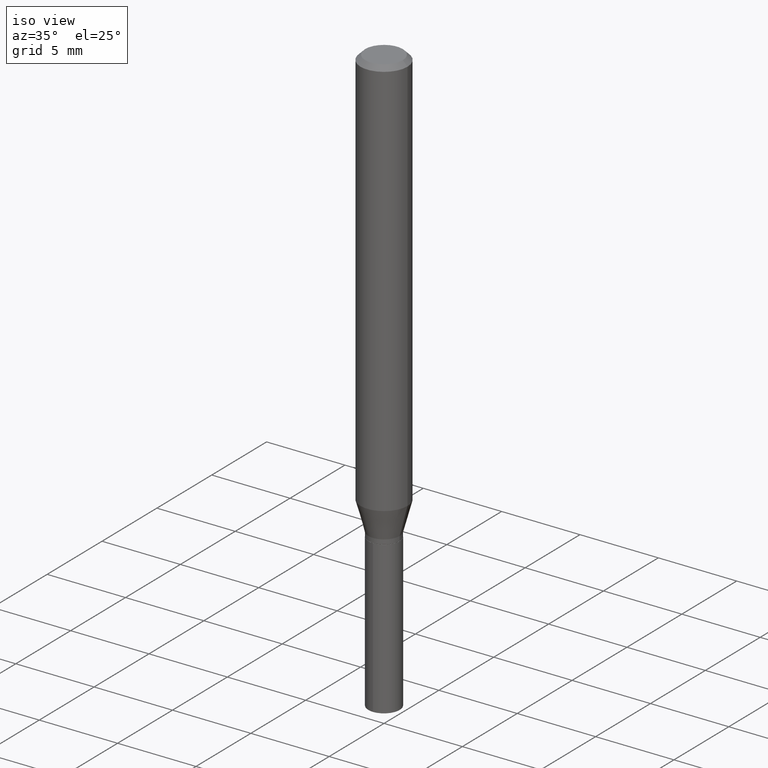
[diagram: clean part render]
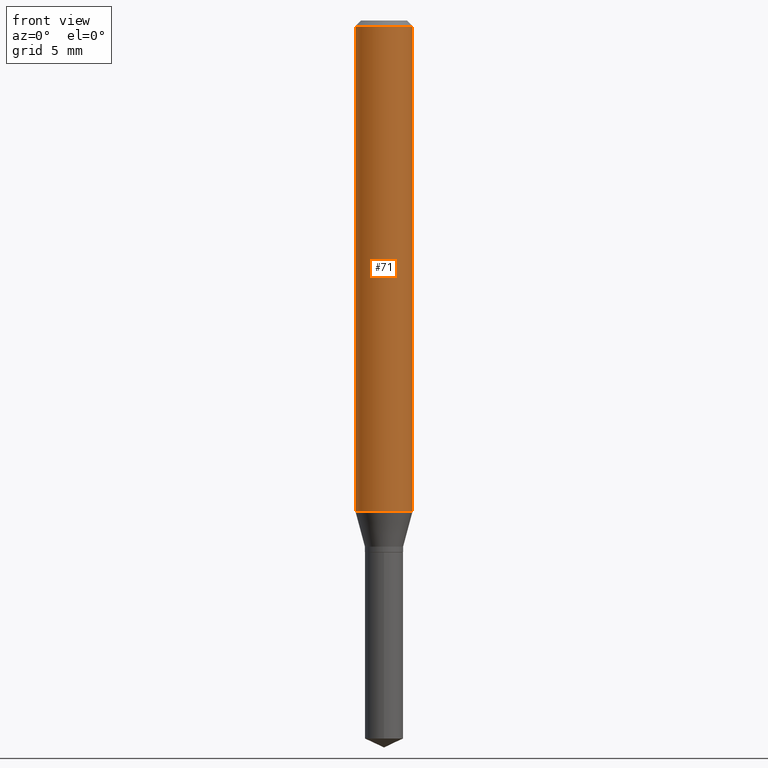
[diagram: tour spotlight — one face highlighted and labeled with its STEP entity id]
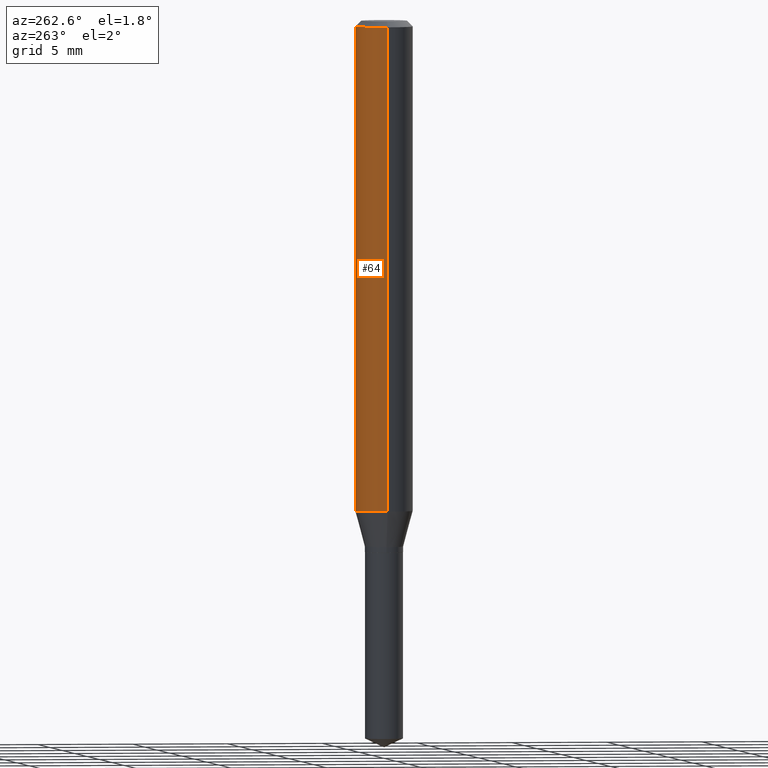
[diagram: tour spotlight — one face highlighted and labeled with its STEP entity id]
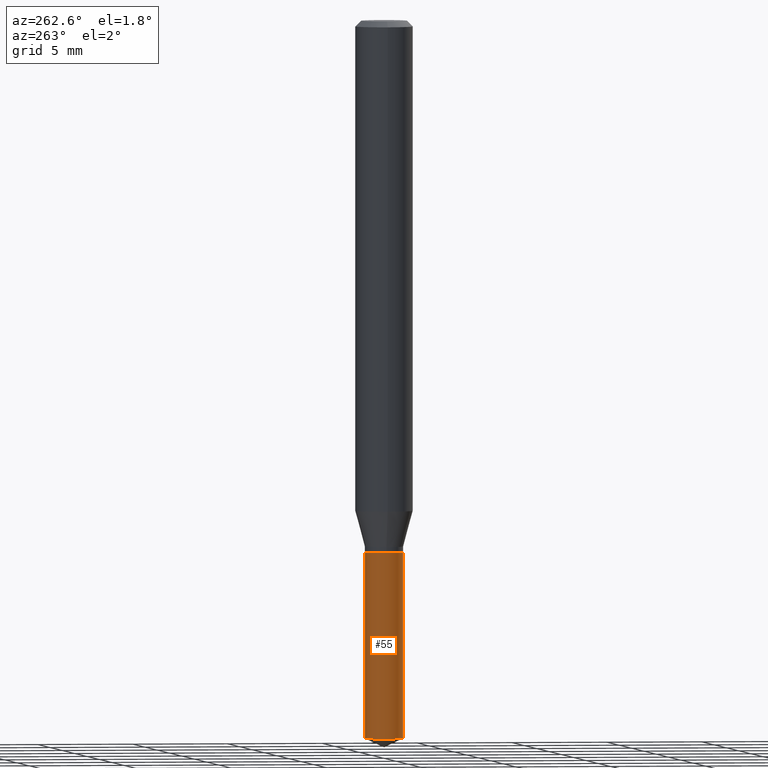
[diagram: tour spotlight — one face highlighted and labeled with its STEP entity id]
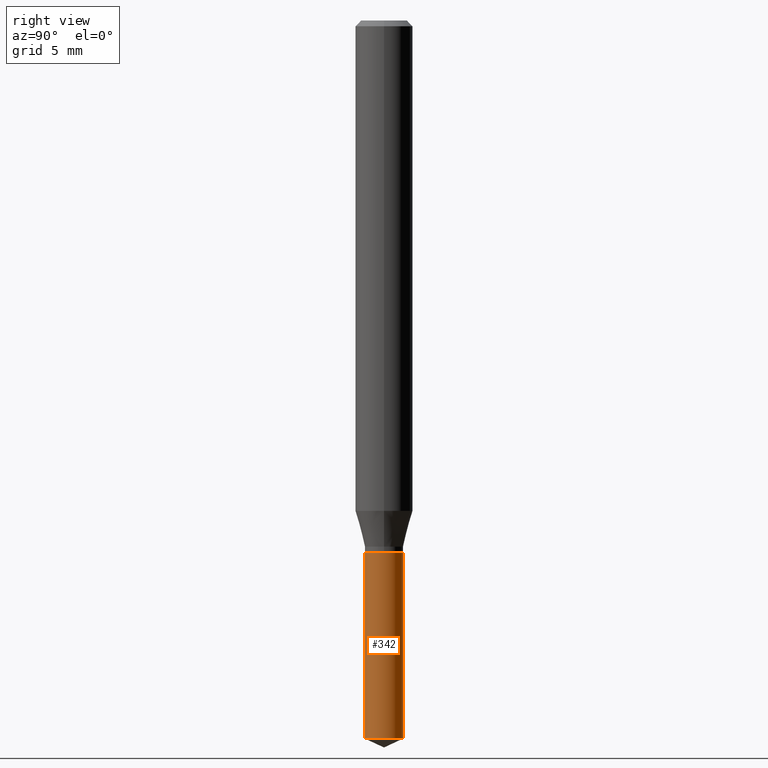
[diagram: tour spotlight — one face highlighted and labeled with its STEP entity id]
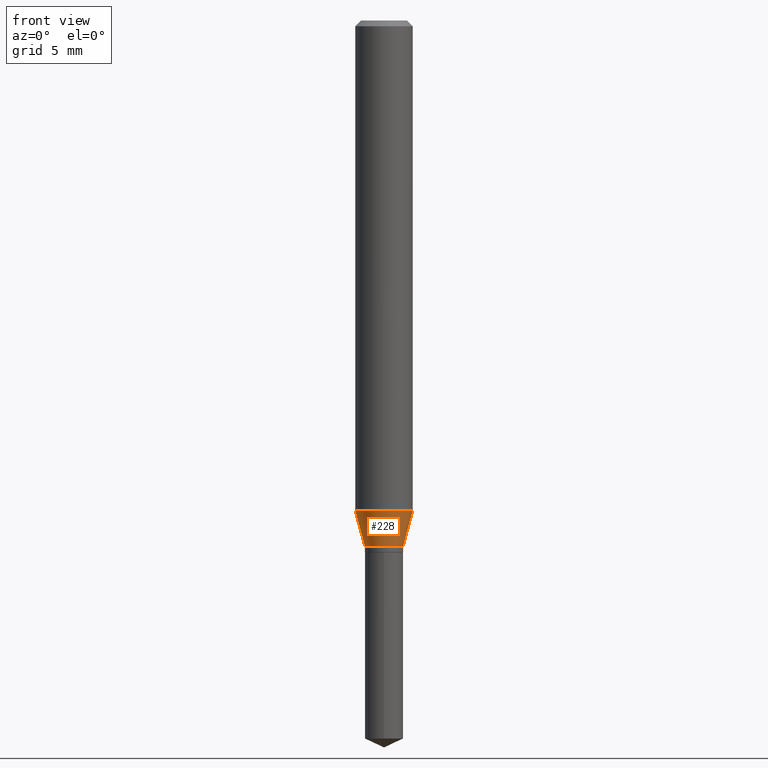
[diagram: tour spotlight — one face highlighted and labeled with its STEP entity id]
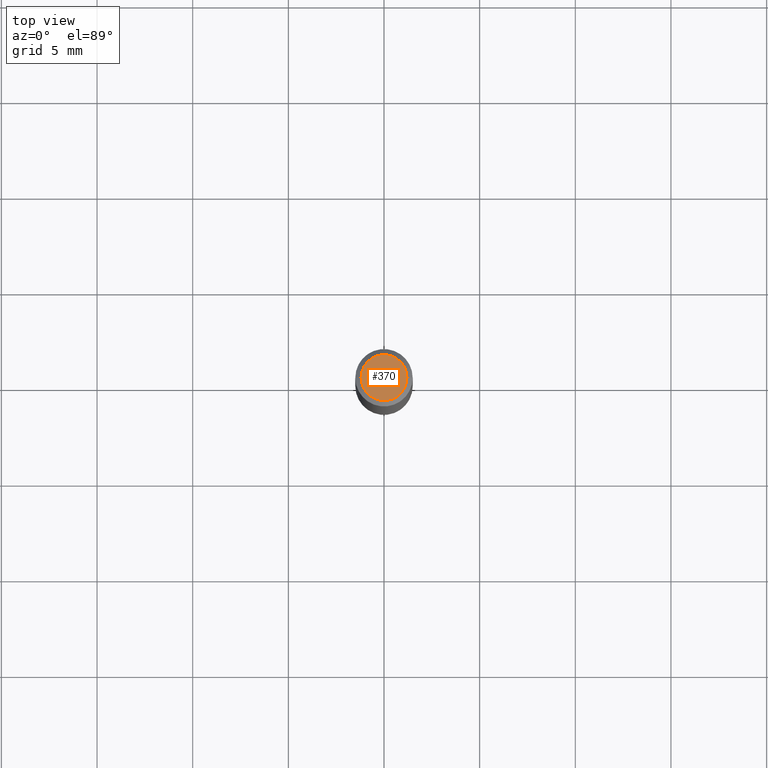
[diagram: tour spotlight — one face highlighted and labeled with its STEP entity id]
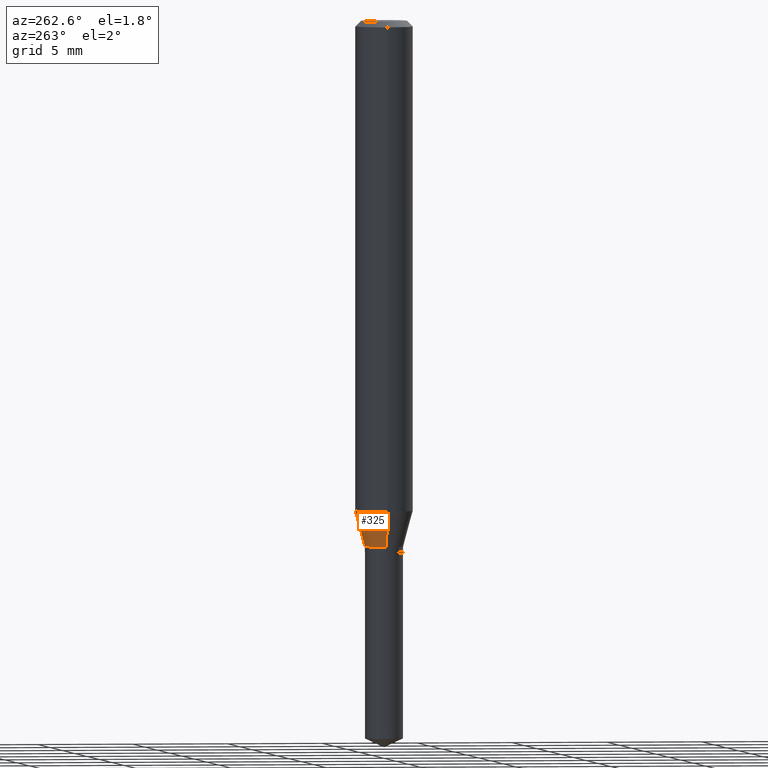
[diagram: tour spotlight — one face highlighted and labeled with its STEP entity id]
A machine part: a face-by-face anatomy tour. The part has 17 B-rep faces; the first image is the clean iso view, then the 7 largest visible faces are spotlighted one at a time (largest first), each with its STEP entity span.

Face 1 — front view, entity #71. In plain terms, the highlighted cylindrical surface (edge-blend (fillet) strip) has radius 1.4999 mm, axis along (-0, 0, 1).
Definition (entity closure, byte-faithful):
#1 = VERTEX_POINT ( 'NONE', #120 ) ;
#4 = VERTEX_POINT ( 'NONE', #45 ) ;
#22 = DIRECTION ( 'NONE',  ( -2.445468806185136597E-29, 3.491481338843145583E-15, 1.000000000000000000 ) ) ;
#23 = CARTESIAN_POINT ( 'NONE',  ( -0.05905000000000011628, -3.103952760819379740E-15, -1.009178599090892581 ) ) ;
#39 = AXIS2_PLACEMENT_3D ( 'NONE', #241, #271, #429 ) ;
#45 = CARTESIAN_POINT ( 'NONE',  ( 0.05905000000000011628, -3.935872192403094548E-15, -1.009178599090892581 ) ) ;
#47 = CIRCLE ( 'NONE', #186, 0.05905000000000011628 ) ;
#51 = EDGE_CURVE ( 'NONE', #333, #305, #424, .T. ) ;
#68 = CARTESIAN_POINT ( 'NONE',  ( 2.888098660104663766E-31, -4.123439461173779647E-17, -0.01181000000000007044 ) ) ;
#71 = ADVANCED_FACE ( 'NONE', ( #96 ), #238, .T. ) ;
#85 = DIRECTION ( 'NONE',  ( -2.445468806185136877E-29, 3.491481338843145188E-15, 1.000000000000000000 ) ) ;
#96 = FACE_OUTER_BOUND ( 'NONE', #398, .T. ) ;
#120 = CARTESIAN_POINT ( 'NONE',  ( 0.05904999999999999832, -4.535783407291118600E-16, -0.01181000000000007044 ) ) ;
#134 = ORIENTED_EDGE ( 'NONE', *, *, #310, .T. ) ;
#139 = DIRECTION ( 'NONE',  ( -2.445468806185136877E-29, 3.491481338843145188E-15, 1.000000000000000000 ) ) ;
#142 = LINE ( 'NONE', #448, #314 ) ;
#149 = CARTESIAN_POINT ( 'NONE',  ( -0.05905000000000006077, 4.195754854663395916E-16, -2.904631170795524694E-30 ) ) ;
#171 = DIRECTION ( 'NONE',  ( 1.000000000000000000, -6.982962677686266711E-15, 0.000000000000000000 ) ) ;
#178 = CARTESIAN_POINT ( 'NONE',  ( -0.05904999999999999832, -1.362805834982388396E-15, -0.01181000000000007044 ) ) ;
#186 = AXIS2_PLACEMENT_3D ( 'NONE', #482, #371, #439 ) ;
#230 = ORIENTED_EDGE ( 'NONE', *, *, #51, .F. ) ;
#238 = CYLINDRICAL_SURFACE ( 'NONE', #39, 0.05905000000000006077 ) ;
#241 = CARTESIAN_POINT ( 'NONE',  ( 0.000000000000000000, 0.000000000000000000, 0.000000000000000000 ) ) ;
#249 = ORIENTED_EDGE ( 'NONE', *, *, #394, .F. ) ;
#271 = DIRECTION ( 'NONE',  ( -2.445468806185136597E-29, 3.491481338843145583E-15, 1.000000000000000000 ) ) ;
#305 = VERTEX_POINT ( 'NONE', #178 ) ;
#310 = EDGE_CURVE ( 'NONE', #4, #1, #142, .T. ) ;
#314 = VECTOR ( 'NONE', #139, 39.37007874015748143 ) ;
#333 = VERTEX_POINT ( 'NONE', #23 ) ;
#335 = EDGE_CURVE ( 'NONE', #333, #4, #47, .T. ) ;
#369 = AXIS2_PLACEMENT_3D ( 'NONE', #68, #22, #171 ) ;
#371 = DIRECTION ( 'NONE',  ( -2.445468806185136597E-29, 3.491481338843145583E-15, 1.000000000000000000 ) ) ;
#394 = EDGE_CURVE ( 'NONE', #305, #1, #435, .T. ) ;
#398 = EDGE_LOOP ( 'NONE', ( #230, #406, #134, #249 ) ) ;
#406 = ORIENTED_EDGE ( 'NONE', *, *, #335, .T. ) ;
#424 = LINE ( 'NONE', #149, #441 ) ;
#429 = DIRECTION ( 'NONE',  ( 1.000000000000000000, -6.982962677686266711E-15, 4.876176775795935793E-29 ) ) ;
#435 = CIRCLE ( 'NONE', #369, 0.05904999999999999832 ) ;
#439 = DIRECTION ( 'NONE',  ( 1.000000000000000000, -6.982962677686266711E-15, 0.000000000000000000 ) ) ;
#441 = VECTOR ( 'NONE', #85, 39.37007874015748143 ) ;
#448 = CARTESIAN_POINT ( 'NONE',  ( 0.05905000000000006077, -4.123439461173744764E-16, 2.879382386107503023E-30 ) ) ;
#482 = CARTESIAN_POINT ( 'NONE',  ( 2.467914783946393779E-29, -3.523528246285719627E-15, -1.009178599090892581 ) ) ;

Face 2 — auxiliary view, entity #64. In plain terms, the highlighted cylindrical surface (edge-blend (fillet) strip) has radius 1.4999 mm, axis along (-0, 0, 1).
Definition (entity closure, byte-faithful):
#1 = VERTEX_POINT ( 'NONE', #120 ) ;
#4 = VERTEX_POINT ( 'NONE', #45 ) ;
#13 = EDGE_CURVE ( 'NONE', #4, #333, #265, .T. ) ;
#23 = CARTESIAN_POINT ( 'NONE',  ( -0.05905000000000011628, -3.103952760819379740E-15, -1.009178599090892581 ) ) ;
#45 = CARTESIAN_POINT ( 'NONE',  ( 0.05905000000000011628, -3.935872192403094548E-15, -1.009178599090892581 ) ) ;
#51 = EDGE_CURVE ( 'NONE', #333, #305, #424, .T. ) ;
#64 = ADVANCED_FACE ( 'NONE', ( #454 ), #456, .T. ) ;
#82 = ORIENTED_EDGE ( 'NONE', *, *, #51, .T. ) ;
#85 = DIRECTION ( 'NONE',  ( -2.445468806185136877E-29, 3.491481338843145188E-15, 1.000000000000000000 ) ) ;
#95 = DIRECTION ( 'NONE',  ( -2.445468806185136597E-29, 3.491481338843145583E-15, 1.000000000000000000 ) ) ;
#105 = CARTESIAN_POINT ( 'NONE',  ( 2.888098660104663766E-31, -4.123439461173779647E-17, -0.01181000000000007044 ) ) ;
#117 = CARTESIAN_POINT ( 'NONE',  ( 0.000000000000000000, 0.000000000000000000, 0.000000000000000000 ) ) ;
#120 = CARTESIAN_POINT ( 'NONE',  ( 0.05904999999999999832, -4.535783407291118600E-16, -0.01181000000000007044 ) ) ;
#123 = DIRECTION ( 'NONE',  ( -2.445468806185136597E-29, 3.491481338843145583E-15, 1.000000000000000000 ) ) ;
#139 = DIRECTION ( 'NONE',  ( -2.445468806185136877E-29, 3.491481338843145188E-15, 1.000000000000000000 ) ) ;
#142 = LINE ( 'NONE', #448, #314 ) ;
#149 = CARTESIAN_POINT ( 'NONE',  ( -0.05905000000000006077, 4.195754854663395916E-16, -2.904631170795524694E-30 ) ) ;
#152 = DIRECTION ( 'NONE',  ( 1.000000000000000000, -6.982962677686266711E-15, 0.000000000000000000 ) ) ;
#175 = DIRECTION ( 'NONE',  ( -2.445468806185136597E-29, 3.491481338843145583E-15, 1.000000000000000000 ) ) ;
#178 = CARTESIAN_POINT ( 'NONE',  ( -0.05904999999999999832, -1.362805834982388396E-15, -0.01181000000000007044 ) ) ;
#182 = ORIENTED_EDGE ( 'NONE', *, *, #310, .F. ) ;
#195 = AXIS2_PLACEMENT_3D ( 'NONE', #263, #123, #152 ) ;
#247 = AXIS2_PLACEMENT_3D ( 'NONE', #105, #175, #366 ) ;
#258 = AXIS2_PLACEMENT_3D ( 'NONE', #117, #95, #355 ) ;
#263 = CARTESIAN_POINT ( 'NONE',  ( 2.467914783946393779E-29, -3.523528246285719627E-15, -1.009178599090892581 ) ) ;
#265 = CIRCLE ( 'NONE', #195, 0.05905000000000011628 ) ;
#288 = CIRCLE ( 'NONE', #247, 0.05904999999999999832 ) ;
#305 = VERTEX_POINT ( 'NONE', #178 ) ;
#310 = EDGE_CURVE ( 'NONE', #4, #1, #142, .T. ) ;
#314 = VECTOR ( 'NONE', #139, 39.37007874015748143 ) ;
#330 = ORIENTED_EDGE ( 'NONE', *, *, #416, .F. ) ;
#333 = VERTEX_POINT ( 'NONE', #23 ) ;
#355 = DIRECTION ( 'NONE',  ( 1.000000000000000000, -6.982962677686266711E-15, 4.876176775795935793E-29 ) ) ;
#366 = DIRECTION ( 'NONE',  ( 1.000000000000000000, -6.982962677686266711E-15, 0.000000000000000000 ) ) ;
#416 = EDGE_CURVE ( 'NONE', #1, #305, #288, .T. ) ;
#424 = LINE ( 'NONE', #149, #441 ) ;
#438 = EDGE_LOOP ( 'NONE', ( #444, #82, #330, #182 ) ) ;
#441 = VECTOR ( 'NONE', #85, 39.37007874015748143 ) ;
#444 = ORIENTED_EDGE ( 'NONE', *, *, #13, .T. ) ;
#448 = CARTESIAN_POINT ( 'NONE',  ( 0.05905000000000006077, -4.123439461173744764E-16, 2.879382386107503023E-30 ) ) ;
#454 = FACE_OUTER_BOUND ( 'NONE', #438, .T. ) ;
#456 = CYLINDRICAL_SURFACE ( 'NONE', #258, 0.05905000000000006077 ) ;

Face 3 — auxiliary view, entity #55. In plain terms, the highlighted cylindrical surface (edge-blend (fillet) strip) has radius 0.9995 mm, axis along (-0, 0, 1).
Definition (entity closure, byte-faithful):
#33 = CARTESIAN_POINT ( 'NONE',  ( -2.747795813669278491E-16, -0.03935000000000382636, -1.094499999999999806 ) ) ;
#42 = VERTEX_POINT ( 'NONE', #270 ) ;
#49 = DIRECTION ( 'NONE',  ( -6.982962677686266711E-15, -1.000000000000000000, 3.471217272762723151E-15 ) ) ;
#55 = ADVANCED_FACE ( 'NONE', ( #232 ), #339, .T. ) ;
#63 = CARTESIAN_POINT ( 'NONE',  ( 2.795985665216355844E-16, 0.03934999999999617970, -1.094500000000000028 ) ) ;
#106 = VERTEX_POINT ( 'NONE', #391 ) ;
#119 = VECTOR ( 'NONE', #443, 39.37007874015748143 ) ;
#127 = CARTESIAN_POINT ( 'NONE',  ( 2.795985665216355844E-16, 0.03934999999999485437, -1.477750793651601446 ) ) ;
#133 = DIRECTION ( 'NONE',  ( -2.445358326776455510E-29, 3.491639551644474585E-15, 1.000000000000000000 ) ) ;
#181 = DIRECTION ( 'NONE',  ( -6.982962677686266711E-15, -1.000000000000000000, 3.471217272762723151E-15 ) ) ;
#189 = ORIENTED_EDGE ( 'NONE', *, *, #256, .F. ) ;
#191 = ORIENTED_EDGE ( 'NONE', *, *, #289, .F. ) ;
#224 = VERTEX_POINT ( 'NONE', #127 ) ;
#226 = CARTESIAN_POINT ( 'NONE',  ( 3.613751127869260610E-29, -5.159599954676888561E-15, -1.477750793651601224 ) ) ;
#232 = FACE_OUTER_BOUND ( 'NONE', #295, .T. ) ;
#256 = EDGE_CURVE ( 'NONE', #224, #411, #329, .T. ) ;
#270 = CARTESIAN_POINT ( 'NONE',  ( -2.747795813669185307E-16, -0.03935000000000517251, -1.477750793651601002 ) ) ;
#280 = AXIS2_PLACEMENT_3D ( 'NONE', #490, #301, #49 ) ;
#283 = CARTESIAN_POINT ( 'NONE',  ( 2.676565608369631794E-29, -3.821426325363822773E-15, -1.094499999999999806 ) ) ;
#289 = EDGE_CURVE ( 'NONE', #411, #106, #361, .T. ) ;
#294 = CARTESIAN_POINT ( 'NONE',  ( 2.795985665216261180E-16, 0.03934999999999617970, -1.094500000000000028 ) ) ;
#295 = EDGE_LOOP ( 'NONE', ( #189, #459, #474, #191 ) ) ;
#301 = DIRECTION ( 'NONE',  ( -2.445358326776455510E-29, 3.491639551644474585E-15, 1.000000000000000000 ) ) ;
#322 = DIRECTION ( 'NONE',  ( -2.445358326776455790E-29, 3.491639551644474585E-15, 1.000000000000000000 ) ) ;
#326 = LINE ( 'NONE', #33, #119 ) ;
#329 = LINE ( 'NONE', #294, #377 ) ;
#338 = DIRECTION ( 'NONE',  ( -2.445358326776455510E-29, 3.491639551644474585E-15, 1.000000000000000000 ) ) ;
#339 = CYLINDRICAL_SURFACE ( 'NONE', #280, 0.03935000000000000303 ) ;
#345 = DIRECTION ( 'NONE',  ( -6.982962677686266711E-15, -1.000000000000000000, 6.942434545525446301E-15 ) ) ;
#347 = AXIS2_PLACEMENT_3D ( 'NONE', #283, #133, #181 ) ;
#353 = CIRCLE ( 'NONE', #408, 0.03935000000000000303 ) ;
#361 = CIRCLE ( 'NONE', #347, 0.03935000000000000303 ) ;
#377 = VECTOR ( 'NONE', #322, 39.37007874015748143 ) ;
#391 = CARTESIAN_POINT ( 'NONE',  ( -2.747795813669278491E-16, -0.03935000000000382636, -1.094499999999999806 ) ) ;
#408 = AXIS2_PLACEMENT_3D ( 'NONE', #226, #338, #345 ) ;
#411 = VERTEX_POINT ( 'NONE', #63 ) ;
#422 = EDGE_CURVE ( 'NONE', #42, #106, #326, .T. ) ;
#443 = DIRECTION ( 'NONE',  ( -2.445358326776455790E-29, 3.491639551644474585E-15, 1.000000000000000000 ) ) ;
#446 = EDGE_CURVE ( 'NONE', #224, #42, #353, .T. ) ;
#459 = ORIENTED_EDGE ( 'NONE', *, *, #446, .T. ) ;
#474 = ORIENTED_EDGE ( 'NONE', *, *, #422, .T. ) ;
#490 = CARTESIAN_POINT ( 'NONE',  ( 2.676565608369631794E-29, -3.821426325363822773E-15, -1.094499999999999806 ) ) ;

Face 4 — right view, entity #342. In plain terms, the highlighted cylindrical surface (edge-blend (fillet) strip) has radius 0.9995 mm, axis along (-0, 0, 1).
Definition (entity closure, byte-faithful):
#33 = CARTESIAN_POINT ( 'NONE',  ( -2.747795813669278491E-16, -0.03935000000000382636, -1.094499999999999806 ) ) ;
#42 = VERTEX_POINT ( 'NONE', #270 ) ;
#46 = AXIS2_PLACEMENT_3D ( 'NONE', #237, #132, #436 ) ;
#50 = DIRECTION ( 'NONE',  ( -6.982962677686266711E-15, -1.000000000000000000, 3.471217272762723151E-15 ) ) ;
#63 = CARTESIAN_POINT ( 'NONE',  ( 2.795985665216355844E-16, 0.03934999999999617970, -1.094500000000000028 ) ) ;
#69 = ORIENTED_EDGE ( 'NONE', *, *, #88, .T. ) ;
#88 = EDGE_CURVE ( 'NONE', #42, #224, #257, .T. ) ;
#101 = DIRECTION ( 'NONE',  ( -2.445358326776455510E-29, 3.491639551644474585E-15, 1.000000000000000000 ) ) ;
#103 = FACE_OUTER_BOUND ( 'NONE', #252, .T. ) ;
#104 = ORIENTED_EDGE ( 'NONE', *, *, #107, .F. ) ;
#106 = VERTEX_POINT ( 'NONE', #391 ) ;
#107 = EDGE_CURVE ( 'NONE', #106, #411, #368, .T. ) ;
#119 = VECTOR ( 'NONE', #443, 39.37007874015748143 ) ;
#127 = CARTESIAN_POINT ( 'NONE',  ( 2.795985665216355844E-16, 0.03934999999999485437, -1.477750793651601446 ) ) ;
#132 = DIRECTION ( 'NONE',  ( -2.445358326776455510E-29, 3.491639551644474585E-15, 1.000000000000000000 ) ) ;
#198 = CARTESIAN_POINT ( 'NONE',  ( 2.676565608369631794E-29, -3.821426325363822773E-15, -1.094499999999999806 ) ) ;
#223 = AXIS2_PLACEMENT_3D ( 'NONE', #198, #348, #50 ) ;
#224 = VERTEX_POINT ( 'NONE', #127 ) ;
#237 = CARTESIAN_POINT ( 'NONE',  ( 3.613751127869260610E-29, -5.159599954676888561E-15, -1.477750793651601224 ) ) ;
#252 = EDGE_LOOP ( 'NONE', ( #69, #417, #104, #268 ) ) ;
#256 = EDGE_CURVE ( 'NONE', #224, #411, #329, .T. ) ;
#257 = CIRCLE ( 'NONE', #46, 0.03935000000000000303 ) ;
#268 = ORIENTED_EDGE ( 'NONE', *, *, #422, .F. ) ;
#270 = CARTESIAN_POINT ( 'NONE',  ( -2.747795813669185307E-16, -0.03935000000000517251, -1.477750793651601002 ) ) ;
#294 = CARTESIAN_POINT ( 'NONE',  ( 2.795985665216261180E-16, 0.03934999999999617970, -1.094500000000000028 ) ) ;
#321 = AXIS2_PLACEMENT_3D ( 'NONE', #473, #101, #364 ) ;
#322 = DIRECTION ( 'NONE',  ( -2.445358326776455790E-29, 3.491639551644474585E-15, 1.000000000000000000 ) ) ;
#326 = LINE ( 'NONE', #33, #119 ) ;
#329 = LINE ( 'NONE', #294, #377 ) ;
#342 = ADVANCED_FACE ( 'NONE', ( #103 ), #397, .T. ) ;
#348 = DIRECTION ( 'NONE',  ( -2.445358326776455510E-29, 3.491639551644474585E-15, 1.000000000000000000 ) ) ;
#364 = DIRECTION ( 'NONE',  ( -6.982962677686266711E-15, -1.000000000000000000, 3.471217272762723151E-15 ) ) ;
#368 = CIRCLE ( 'NONE', #223, 0.03935000000000000303 ) ;
#377 = VECTOR ( 'NONE', #322, 39.37007874015748143 ) ;
#391 = CARTESIAN_POINT ( 'NONE',  ( -2.747795813669278491E-16, -0.03935000000000382636, -1.094499999999999806 ) ) ;
#397 = CYLINDRICAL_SURFACE ( 'NONE', #321, 0.03935000000000000303 ) ;
#411 = VERTEX_POINT ( 'NONE', #63 ) ;
#417 = ORIENTED_EDGE ( 'NONE', *, *, #256, .T. ) ;
#422 = EDGE_CURVE ( 'NONE', #42, #106, #326, .T. ) ;
#436 = DIRECTION ( 'NONE',  ( -6.982962677686266711E-15, -1.000000000000000000, 6.942434545525446301E-15 ) ) ;
#443 = DIRECTION ( 'NONE',  ( -2.445358326776455790E-29, 3.491639551644474585E-15, 1.000000000000000000 ) ) ;
#473 = CARTESIAN_POINT ( 'NONE',  ( 2.676565608369631794E-29, -3.821426325363822773E-15, -1.094499999999999806 ) ) ;

Face 5 — front view, entity #228. In plain terms, the highlighted conical surface has half-angle 15 deg.
Definition (entity closure, byte-faithful):
#4 = VERTEX_POINT ( 'NONE', #45 ) ;
#15 = DIRECTION ( 'NONE',  ( -2.445468806185136597E-29, 3.491481338843145583E-15, 1.000000000000000000 ) ) ;
#20 = LINE ( 'NONE', #278, #154 ) ;
#23 = CARTESIAN_POINT ( 'NONE',  ( -0.05905000000000011628, -3.103952760819379740E-15, -1.009178599090892581 ) ) ;
#29 = LINE ( 'NONE', #216, #479 ) ;
#40 = CIRCLE ( 'NONE', #70, 0.03934999999999994752 ) ;
#45 = CARTESIAN_POINT ( 'NONE',  ( 0.05905000000000011628, -3.935872192403094548E-15, -1.009178599090892581 ) ) ;
#47 = CIRCLE ( 'NONE', #186, 0.05905000000000011628 ) ;
#58 = CARTESIAN_POINT ( 'NONE',  ( 2.647709076456647173E-29, -3.780226845565473711E-15, -1.082699999999999996 ) ) ;
#59 = CONICAL_SURFACE ( 'NONE', #246, 0.03934999999999994752, 0.2617993877991501850 ) ;
#67 = ORIENTED_EDGE ( 'NONE', *, *, #135, .F. ) ;
#70 = AXIS2_PLACEMENT_3D ( 'NONE', #58, #259, #477 ) ;
#80 = VERTEX_POINT ( 'NONE', #433 ) ;
#102 = VERTEX_POINT ( 'NONE', #309 ) ;
#135 = EDGE_CURVE ( 'NONE', #80, #333, #20, .T. ) ;
#154 = VECTOR ( 'NONE', #396, 39.37007874015748143 ) ;
#186 = AXIS2_PLACEMENT_3D ( 'NONE', #482, #371, #439 ) ;
#216 = CARTESIAN_POINT ( 'NONE',  ( 0.03934999999999994752, -4.055006426932427839E-15, -1.082699999999999996 ) ) ;
#228 = ADVANCED_FACE ( 'NONE', ( #275 ), #59, .T. ) ;
#246 = AXIS2_PLACEMENT_3D ( 'NONE', #352, #15, #468 ) ;
#259 = DIRECTION ( 'NONE',  ( -2.445468806185136597E-29, 3.491481338843145583E-15, 1.000000000000000000 ) ) ;
#262 = DIRECTION ( 'NONE',  ( 0.2588190451025214611, 1.565188264969620982E-15, 0.9659258262890679791 ) ) ;
#266 = ORIENTED_EDGE ( 'NONE', *, *, #277, .T. ) ;
#275 = FACE_OUTER_BOUND ( 'NONE', #291, .T. ) ;
#277 = EDGE_CURVE ( 'NONE', #80, #102, #40, .T. ) ;
#278 = CARTESIAN_POINT ( 'NONE',  ( -0.03934999999999994752, -3.500628279043874316E-15, -1.082699999999999996 ) ) ;
#291 = EDGE_LOOP ( 'NONE', ( #67, #266, #440, #303 ) ) ;
#303 = ORIENTED_EDGE ( 'NONE', *, *, #335, .F. ) ;
#309 = CARTESIAN_POINT ( 'NONE',  ( 0.03934999999999994752, -4.055006426932427839E-15, -1.082699999999999996 ) ) ;
#333 = VERTEX_POINT ( 'NONE', #23 ) ;
#335 = EDGE_CURVE ( 'NONE', #333, #4, #47, .T. ) ;
#352 = CARTESIAN_POINT ( 'NONE',  ( 2.647709076456647173E-29, -3.780226845565473711E-15, -1.082699999999999996 ) ) ;
#371 = DIRECTION ( 'NONE',  ( -2.445468806185136597E-29, 3.491481338843145583E-15, 1.000000000000000000 ) ) ;
#396 = DIRECTION ( 'NONE',  ( -0.2588190451025214611, 5.211531920934550253E-15, 0.9659258262890679791 ) ) ;
#431 = EDGE_CURVE ( 'NONE', #102, #4, #29, .T. ) ;
#433 = CARTESIAN_POINT ( 'NONE',  ( -0.03934999999999994752, -3.520355148608338095E-15, -1.082699999999999996 ) ) ;
#439 = DIRECTION ( 'NONE',  ( 1.000000000000000000, -6.982962677686266711E-15, 0.000000000000000000 ) ) ;
#440 = ORIENTED_EDGE ( 'NONE', *, *, #431, .T. ) ;
#468 = DIRECTION ( 'NONE',  ( 1.000000000000000000, -6.982962677686266711E-15, 0.000000000000000000 ) ) ;
#477 = DIRECTION ( 'NONE',  ( 1.000000000000000000, -6.982962677686266711E-15, 0.000000000000000000 ) ) ;
#479 = VECTOR ( 'NONE', #262, 39.37007874015748143 ) ;
#482 = CARTESIAN_POINT ( 'NONE',  ( 2.467914783946393779E-29, -3.523528246285719627E-15, -1.009178599090892581 ) ) ;

Face 6 — top view, entity #370. In plain terms, the highlighted planar face has unit normal (0, -0, -1).
Definition (entity closure, byte-faithful):
#17 = CARTESIAN_POINT ( 'NONE',  ( -0.04724000000000000421, 3.504923541997677355E-16, -3.380025165670481712E-19 ) ) ;
#26 = PLANE ( 'NONE',  #196 ) ;
#38 = EDGE_LOOP ( 'NONE', ( #324, #176 ) ) ;
#75 = VERTEX_POINT ( 'NONE', #129 ) ;
#78 = DIRECTION ( 'NONE',  ( 1.000000000000000000, -6.982962677686266711E-15, 4.876185090822587894E-29 ) ) ;
#92 = CARTESIAN_POINT ( 'NONE',  ( 8.265746106709734507E-48, -1.180129479067563789E-33, -3.380025165646692144E-19 ) ) ;
#122 = CARTESIAN_POINT ( 'NONE',  ( 8.265746106709734507E-48, -1.180129479067563789E-33, -3.380025165646692144E-19 ) ) ;
#129 = CARTESIAN_POINT ( 'NONE',  ( 0.04724000000000000421, -3.852183633974369345E-16, -3.380025165621689721E-19 ) ) ;
#146 = AXIS2_PLACEMENT_3D ( 'NONE', #92, #465, #165 ) ;
#153 = VERTEX_POINT ( 'NONE', #17 ) ;
#165 = DIRECTION ( 'NONE',  ( 1.000000000000000000, -6.982962677686266711E-15, 4.876185090822587894E-29 ) ) ;
#176 = ORIENTED_EDGE ( 'NONE', *, *, #221, .T. ) ;
#196 = AXIS2_PLACEMENT_3D ( 'NONE', #405, #475, #248 ) ;
#221 = EDGE_CURVE ( 'NONE', #75, #153, #360, .T. ) ;
#248 = DIRECTION ( 'NONE',  ( -1.000000000000000000, 6.982962677686265922E-15, -4.876176775795935793E-29 ) ) ;
#324 = ORIENTED_EDGE ( 'NONE', *, *, #434, .T. ) ;
#328 = AXIS2_PLACEMENT_3D ( 'NONE', #122, #340, #78 ) ;
#331 = FACE_OUTER_BOUND ( 'NONE', #38, .T. ) ;
#340 = DIRECTION ( 'NONE',  ( -2.445468806185136597E-29, 3.491481338843145583E-15, 1.000000000000000000 ) ) ;
#360 = CIRCLE ( 'NONE', #146, 0.04724000000000000421 ) ;
#370 = ADVANCED_FACE ( 'NONE', ( #331 ), #26, .F. ) ;
#384 = CIRCLE ( 'NONE', #328, 0.04724000000000000421 ) ;
#405 = CARTESIAN_POINT ( 'NONE',  ( 4.132873053354867254E-48, -5.900647395337818946E-34, -1.690012582823346072E-19 ) ) ;
#434 = EDGE_CURVE ( 'NONE', #153, #75, #384, .T. ) ;
#465 = DIRECTION ( 'NONE',  ( -2.445468806185136597E-29, 3.491481338843145583E-15, 1.000000000000000000 ) ) ;
#475 = DIRECTION ( 'NONE',  ( 2.438088387897960049E-29, -3.491481338843145188E-15, -1.000000000000000000 ) ) ;

Face 7 — auxiliary view, entity #325. In plain terms, the highlighted conical surface has half-angle 15 deg.
Definition (entity closure, byte-faithful):
#4 = VERTEX_POINT ( 'NONE', #45 ) ;
#13 = EDGE_CURVE ( 'NONE', #4, #333, #265, .T. ) ;
#14 = CIRCLE ( 'NONE', #320, 0.03934999999999994752 ) ;
#20 = LINE ( 'NONE', #278, #154 ) ;
#23 = CARTESIAN_POINT ( 'NONE',  ( -0.05905000000000011628, -3.103952760819379740E-15, -1.009178599090892581 ) ) ;
#29 = LINE ( 'NONE', #216, #479 ) ;
#45 = CARTESIAN_POINT ( 'NONE',  ( 0.05905000000000011628, -3.935872192403094548E-15, -1.009178599090892581 ) ) ;
#80 = VERTEX_POINT ( 'NONE', #433 ) ;
#102 = VERTEX_POINT ( 'NONE', #309 ) ;
#108 = CARTESIAN_POINT ( 'NONE',  ( 2.647709076456647173E-29, -3.780226845565473711E-15, -1.082699999999999996 ) ) ;
#123 = DIRECTION ( 'NONE',  ( -2.445468806185136597E-29, 3.491481338843145583E-15, 1.000000000000000000 ) ) ;
#135 = EDGE_CURVE ( 'NONE', #80, #333, #20, .T. ) ;
#152 = DIRECTION ( 'NONE',  ( 1.000000000000000000, -6.982962677686266711E-15, 0.000000000000000000 ) ) ;
#154 = VECTOR ( 'NONE', #396, 39.37007874015748143 ) ;
#194 = ORIENTED_EDGE ( 'NONE', *, *, #431, .F. ) ;
#195 = AXIS2_PLACEMENT_3D ( 'NONE', #263, #123, #152 ) ;
#208 = CONICAL_SURFACE ( 'NONE', #297, 0.03934999999999994752, 0.2617993877991501850 ) ;
#209 = DIRECTION ( 'NONE',  ( 1.000000000000000000, -6.982962677686266711E-15, 0.000000000000000000 ) ) ;
#216 = CARTESIAN_POINT ( 'NONE',  ( 0.03934999999999994752, -4.055006426932427839E-15, -1.082699999999999996 ) ) ;
#218 = ORIENTED_EDGE ( 'NONE', *, *, #13, .F. ) ;
#244 = DIRECTION ( 'NONE',  ( 1.000000000000000000, -6.982962677686266711E-15, 0.000000000000000000 ) ) ;
#250 = DIRECTION ( 'NONE',  ( -2.445468806185136597E-29, 3.491481338843145583E-15, 1.000000000000000000 ) ) ;
#253 = FACE_OUTER_BOUND ( 'NONE', #462, .T. ) ;
#262 = DIRECTION ( 'NONE',  ( 0.2588190451025214611, 1.565188264969620982E-15, 0.9659258262890679791 ) ) ;
#263 = CARTESIAN_POINT ( 'NONE',  ( 2.467914783946393779E-29, -3.523528246285719627E-15, -1.009178599090892581 ) ) ;
#265 = CIRCLE ( 'NONE', #195, 0.05905000000000011628 ) ;
#278 = CARTESIAN_POINT ( 'NONE',  ( -0.03934999999999994752, -3.500628279043874316E-15, -1.082699999999999996 ) ) ;
#293 = ORIENTED_EDGE ( 'NONE', *, *, #135, .T. ) ;
#297 = AXIS2_PLACEMENT_3D ( 'NONE', #108, #484, #209 ) ;
#299 = EDGE_CURVE ( 'NONE', #102, #80, #14, .T. ) ;
#309 = CARTESIAN_POINT ( 'NONE',  ( 0.03934999999999994752, -4.055006426932427839E-15, -1.082699999999999996 ) ) ;
#320 = AXIS2_PLACEMENT_3D ( 'NONE', #402, #250, #244 ) ;
#325 = ADVANCED_FACE ( 'NONE', ( #253 ), #208, .T. ) ;
#333 = VERTEX_POINT ( 'NONE', #23 ) ;
#396 = DIRECTION ( 'NONE',  ( -0.2588190451025214611, 5.211531920934550253E-15, 0.9659258262890679791 ) ) ;
#402 = CARTESIAN_POINT ( 'NONE',  ( 2.647709076456647173E-29, -3.780226845565473711E-15, -1.082699999999999996 ) ) ;
#431 = EDGE_CURVE ( 'NONE', #102, #4, #29, .T. ) ;
#433 = CARTESIAN_POINT ( 'NONE',  ( -0.03934999999999994752, -3.520355148608338095E-15, -1.082699999999999996 ) ) ;
#462 = EDGE_LOOP ( 'NONE', ( #478, #293, #218, #194 ) ) ;
#478 = ORIENTED_EDGE ( 'NONE', *, *, #299, .T. ) ;
#479 = VECTOR ( 'NONE', #262, 39.37007874015748143 ) ;
#484 = DIRECTION ( 'NONE',  ( -2.445468806185136597E-29, 3.491481338843145583E-15, 1.000000000000000000 ) ) ;